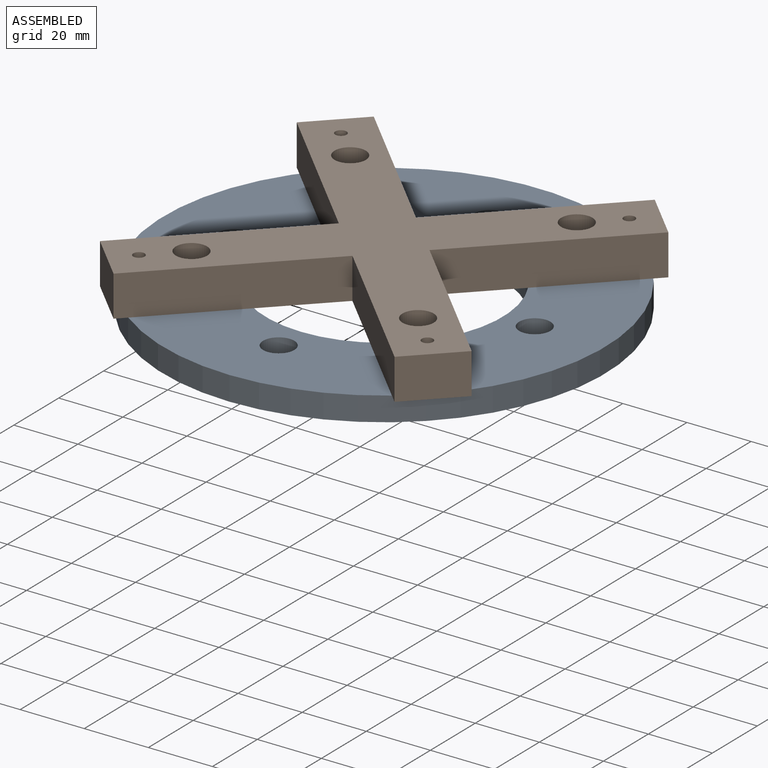
[diagram: assembled view]
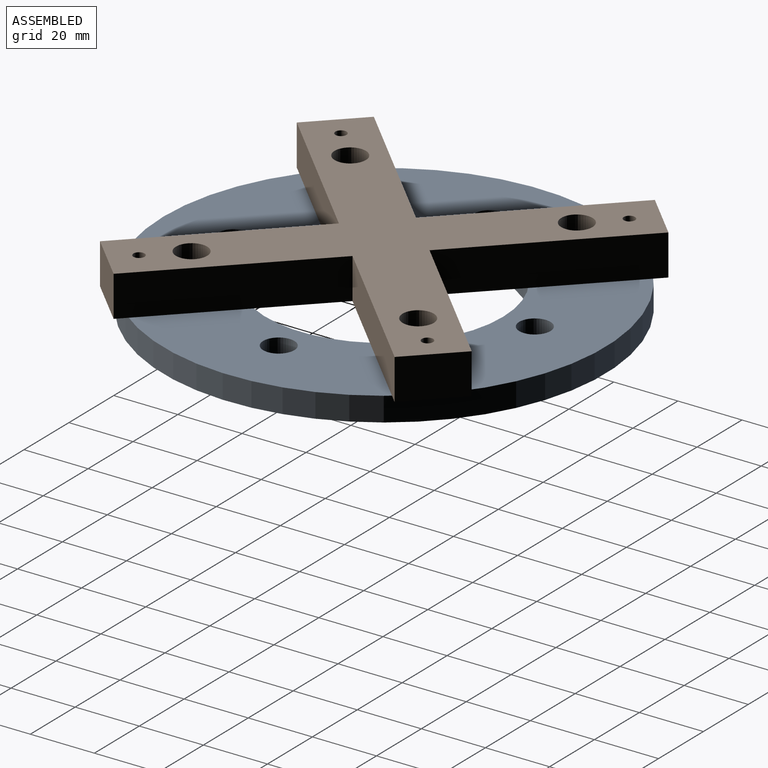
[diagram: assembled view, second angle]
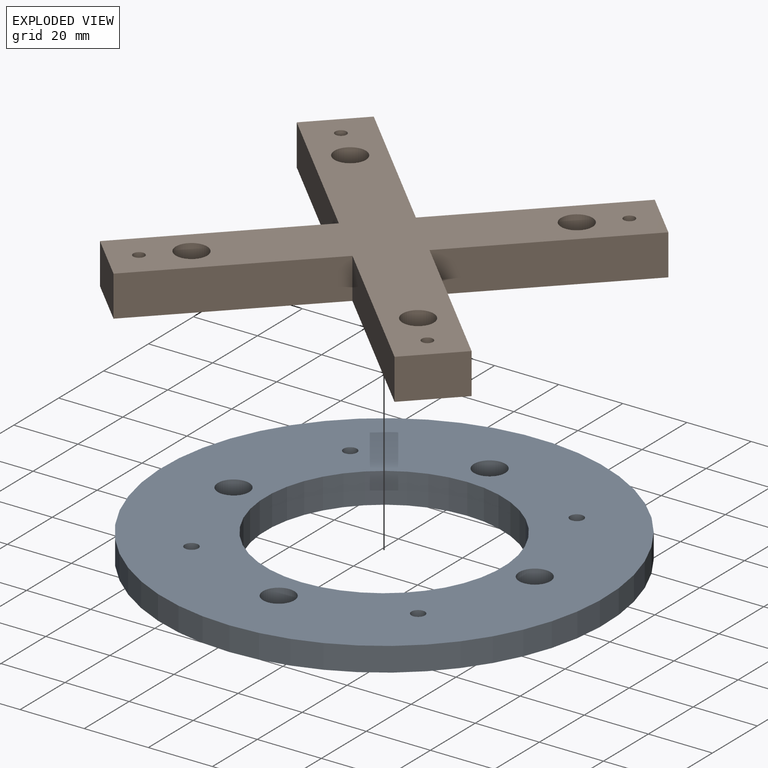
[diagram: exploded view]
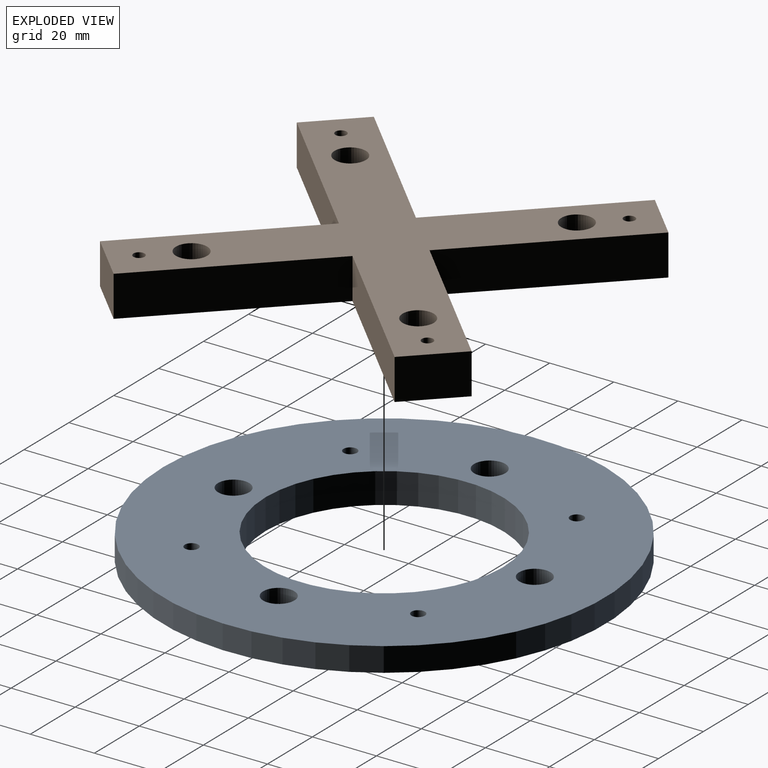
[diagram: exploded view, second angle]
ASSEMBLY  parts=2 mates=3
PART A: 22 faces, bbox 137.8x137.8x9.5 mm
  f0: cylinder r=68.9mm len=137.8mm, axis (0,0,-1), area 3257.7mm2, adj f3,f21
  f1: plane 107x107mm, normal (0,0,-1), area 4540.7mm2, adj f2,f4,f5,f6,f7,f8,f11,f14
  f2: cylinder r=37mm len=74mm, axis (0,0,-1), area 2214.4mm2, adj f1,f3
  f3: plane 137.8x137.8mm, normal (0,0,1), area 10258.9mm2, adj f0,f2,f4,f5,f6,f7,f10,f13
  f4: cylinder r=2.1mm len=9.53mm, axis (0,0,1), area 125.7mm2, adj f1,f3
  f5: cylinder r=2.1mm len=9.53mm, axis (0,0,1), area 125.7mm2, adj f1,f3
  f6: cylinder r=2.1mm len=9.53mm, axis (0,0,1), area 125.7mm2, adj f1,f3
  f7: cylinder r=2.1mm len=9.53mm, axis (0,0,1), area 125.7mm2, adj f1,f3
  f8: cylinder r=2.75mm len=5.5mm, axis (0,0,1), area 78.2mm2, adj f1,f9
  f9: plane 9.75x9.75mm, normal (0,0,1), area 50.9mm2, adj f8,f10
  f10: cylinder r=4.88mm len=9.75mm, axis (0,0,1), area 153.2mm2, adj f3,f9
  f11: cylinder r=2.75mm len=5.5mm, axis (0,0,1), area 78.2mm2, adj f1,f12
  f12: plane 9.75x9.75mm, normal (0,0,1), area 50.9mm2, adj f11,f13
  f13: cylinder r=4.88mm len=9.75mm, axis (0,0,1), area 153.2mm2, adj f3,f12
  f14: cylinder r=2.75mm len=5.5mm, axis (0,0,1), area 78.2mm2, adj f1,f15
  f15: plane 9.75x9.75mm, normal (0,0,1), area 50.9mm2, adj f14,f16
  f16: cylinder r=4.88mm len=9.75mm, axis (0,0,1), area 153.2mm2, adj f3,f15
  f17: cylinder r=2.75mm len=5.5mm, axis (0,0,1), area 78.2mm2, adj f1,f18
  f18: plane 9.75x9.75mm, normal (0,0,1), area 50.9mm2, adj f17,f19
  f19: cylinder r=4.88mm len=9.75mm, axis (0,0,1), area 153.2mm2, adj f3,f18
  f20: cylinder r=53.5mm len=107mm, axis (0,0,-1), area 672.3mm2, adj f1,f21
  f21: plane 137.8x137.8mm, normal (0,0,-1), area 5921.8mm2, adj f0,f20
PART B: 30 faces, bbox 144x144x12.7 mm
  f0: plane 62x12.7mm, normal (-1,0,0), area 787.4mm2, adj f1,f11,f12,f13
  f1: plane 62x12.7mm, normal (0,1,0), area 787.4mm2, adj f0,f2,f12,f13
  f2: plane 20x12.7mm, normal (-1,0,0), area 254mm2, adj f1,f3,f12,f13
  f3: plane 62x12.7mm, normal (0,-1,0), area 787.4mm2, adj f2,f4,f12,f13
  f4: plane 62x12.7mm, normal (-1,0,0), area 787.4mm2, adj f3,f5,f12,f13
  f5: plane 20x12.7mm, normal (0,-1,0), area 254mm2, adj f4,f6,f12,f13
  f6: plane 62x12.7mm, normal (1,0,0), area 787.4mm2, adj f5,f7,f12,f13
  f7: plane 62x12.7mm, normal (0,-1,0), area 787.4mm2, adj f6,f8,f12,f13
  f8: plane 20x12.7mm, normal (1,0,0), area 254mm2, adj f7,f9,f12,f13
  f9: plane 62x12.7mm, normal (0,1,0), area 787.4mm2, adj f8,f10,f12,f13
  f10: plane 62x12.7mm, normal (1,0,0), area 787.4mm2, adj f9,f11,f12,f13
  f11: plane 20x12.7mm, normal (0,1,0), area 254mm2, adj f0,f10,f12,f13
  f12: plane 144x144mm, normal (0,0,1), area 5022.9mm2, adj f0,f1,f2,f3,f4,f5,f6,f7
  f13: plane 144x144mm, normal (0,0,-1), area 5226.5mm2, adj f0,f1,f2,f3,f4,f5,f6,f7
  f14: cylinder r=2.75mm len=7.7mm, axis (0,0,1), area 133mm2, adj f13,f15
  f15: plane 9.75x9.75mm, normal (0,0,1), area 50.9mm2, adj f14,f16
  f16: cylinder r=4.88mm len=9.75mm, axis (0,0,1), area 153.2mm2, adj f12,f15
  f17: cylinder r=2.75mm len=7.7mm, axis (0,0,1), area 133mm2, adj f13,f18
  f18: plane 9.75x9.75mm, normal (0,0,1), area 50.9mm2, adj f17,f19
  f19: cylinder r=4.88mm len=9.75mm, axis (0,0,1), area 153.2mm2, adj f12,f18
  f20: cylinder r=2.75mm len=7.7mm, axis (0,0,1), area 133mm2, adj f13,f21
  f21: plane 9.75x9.75mm, normal (0,0,1), area 50.9mm2, adj f20,f22
  f22: cylinder r=4.88mm len=9.75mm, axis (0,0,1), area 153.2mm2, adj f12,f21
  f23: cylinder r=2.75mm len=7.7mm, axis (0,0,1), area 133mm2, adj f13,f24
  f24: plane 9.75x9.75mm, normal (0,0,1), area 50.9mm2, adj f23,f25
  f25: cylinder r=4.88mm len=9.75mm, axis (0,0,1), area 153.2mm2, adj f12,f24
  f26: cylinder r=1.75mm len=12.7mm, axis (0,0,1), area 139.6mm2, adj f12,f13
  f27: cylinder r=1.75mm len=12.7mm, axis (0,0,1), area 139.6mm2, adj f12,f13
  f28: cylinder r=1.75mm len=12.7mm, axis (0,0,1), area 139.6mm2, adj f12,f13
  f29: cylinder r=1.75mm len=12.7mm, axis (0,0,1), area 139.6mm2, adj f12,f13
PLACE A rot(axis=(0,0,-1),90deg) t=(-150.02,139.41,124.81)mm
PLACE B rot(axis=(0,0,-1),45deg) t=(-150.02,139.41,134.33)mm
MATE planar A.f5 <-> B.f17  axis (0,0,1) through (-185.37,104.05,134.33)mm
MATE cylindrical B.f23 <-> A.f4  axis (0,0,-1) through (-114.66,174.76,134.33)mm
MATE cylindrical A.f5 <-> B.f17  axis (0,0,1) through (-185.37,104.05,134.33)mm
